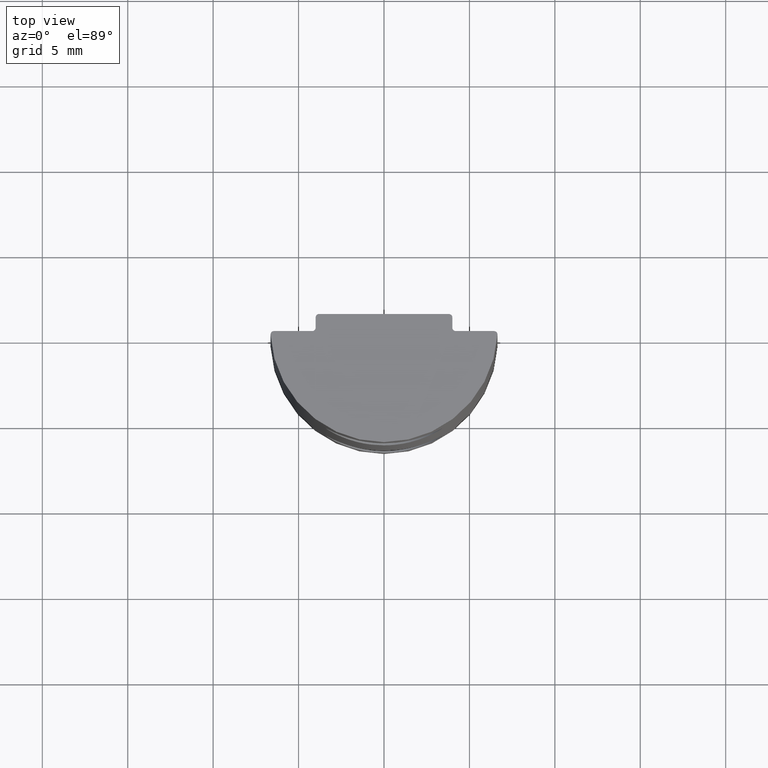
[diagram: clean part render]
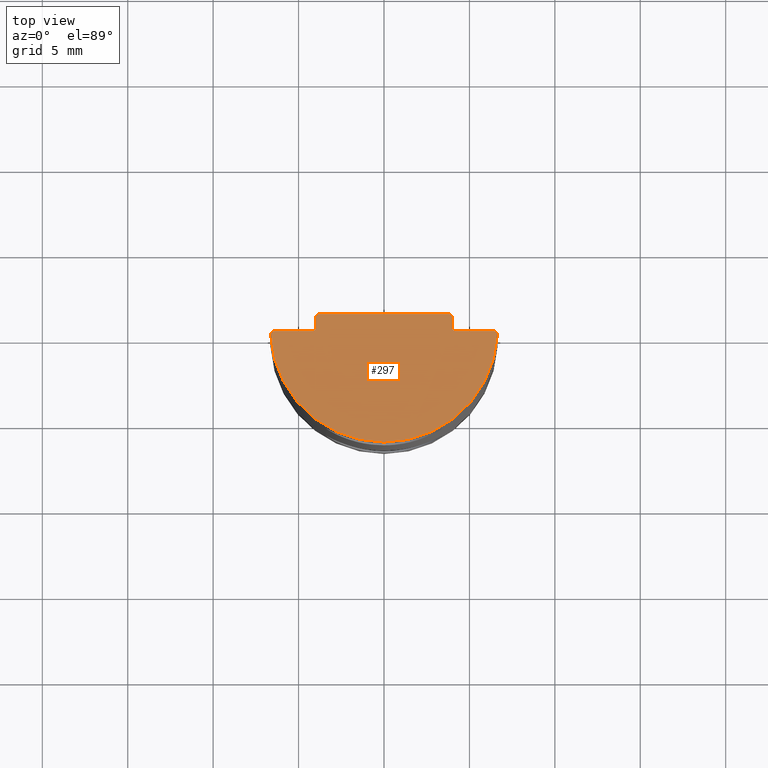
[diagram: same view with one face highlighted and labeled with its STEP entity id]
A machine part, top view. The second image highlights one B-rep face of the part: STEP entity #297.
In plain terms, the highlighted planar face has unit normal (0, 0, 1).
Its self-contained STEP definition (entity closure, byte-faithful):
#23=PLANE('',#321);
#30=LINE('',#525,#52);
#34=LINE('',#534,#56);
#38=LINE('',#543,#60);
#42=LINE('',#552,#64);
#44=LINE('',#556,#66);
#52=VECTOR('',#367,2.24213593341645);
#56=VECTOR('',#373,0.6);
#60=VECTOR('',#379,7.6);
#64=VECTOR('',#385,0.6);
#66=VECTOR('',#389,2.24213593341645);
#77=CIRCLE('',#311,0.2);
#79=CIRCLE('',#314,6.65173076923077);
#81=CIRCLE('',#322,0.2);
#82=CIRCLE('',#323,0.2);
#83=CIRCLE('',#324,0.2);
#84=CIRCLE('',#325,0.2);
#85=CIRCLE('',#326,0.2);
#100=FACE_OUTER_BOUND('',#122,.T.);
#122=EDGE_LOOP('',(#235,#236,#237,#238,#239,#240,#241,#242,#243,#244,#245,
#246));
#135=VERTEX_POINT('',#504);
#136=VERTEX_POINT('',#505);
#139=VERTEX_POINT('',#513);
#143=VERTEX_POINT('',#522);
#144=VERTEX_POINT('',#524);
#147=VERTEX_POINT('',#531);
#148=VERTEX_POINT('',#533);
#151=VERTEX_POINT('',#540);
#152=VERTEX_POINT('',#542);
#155=VERTEX_POINT('',#549);
#156=VERTEX_POINT('',#551);
#157=VERTEX_POINT('',#555);
#163=EDGE_CURVE('',#135,#136,#77,.T.);
#167=EDGE_CURVE('',#136,#139,#79,.T.);
#172=EDGE_CURVE('',#144,#143,#30,.T.);
#176=EDGE_CURVE('',#148,#147,#34,.T.);
#180=EDGE_CURVE('',#152,#151,#38,.T.);
#184=EDGE_CURVE('',#156,#155,#42,.T.);
#186=EDGE_CURVE('',#157,#135,#44,.T.);
#189=EDGE_CURVE('',#151,#156,#81,.T.);
#190=EDGE_CURVE('',#155,#157,#82,.T.);
#191=EDGE_CURVE('',#139,#144,#83,.T.);
#192=EDGE_CURVE('',#143,#148,#84,.T.);
#193=EDGE_CURVE('',#147,#152,#85,.T.);
#235=ORIENTED_EDGE('',*,*,#180,.T.);
#236=ORIENTED_EDGE('',*,*,#189,.T.);
#237=ORIENTED_EDGE('',*,*,#184,.T.);
#238=ORIENTED_EDGE('',*,*,#190,.T.);
#239=ORIENTED_EDGE('',*,*,#186,.T.);
#240=ORIENTED_EDGE('',*,*,#163,.T.);
#241=ORIENTED_EDGE('',*,*,#167,.T.);
#242=ORIENTED_EDGE('',*,*,#191,.T.);
#243=ORIENTED_EDGE('',*,*,#172,.T.);
#244=ORIENTED_EDGE('',*,*,#192,.T.);
#245=ORIENTED_EDGE('',*,*,#176,.T.);
#246=ORIENTED_EDGE('',*,*,#193,.T.);
#297=ADVANCED_FACE('',(#100),#23,.T.);
#311=AXIS2_PLACEMENT_3D('',#506,#350,#351);
#314=AXIS2_PLACEMENT_3D('',#514,#358,#359);
#321=AXIS2_PLACEMENT_3D('',#560,#392,#393);
#322=AXIS2_PLACEMENT_3D('',#561,#394,#395);
#323=AXIS2_PLACEMENT_3D('',#562,#396,#397);
#324=AXIS2_PLACEMENT_3D('',#563,#398,#399);
#325=AXIS2_PLACEMENT_3D('',#564,#400,#401);
#326=AXIS2_PLACEMENT_3D('',#565,#402,#403);
#350=DIRECTION('center_axis',(0.,0.,1.));
#351=DIRECTION('ref_axis',(1.,0.,0.));
#358=DIRECTION('center_axis',(0.,0.,1.));
#359=DIRECTION('ref_axis',(1.,0.,0.));
#367=DIRECTION('',(-1.,0.,0.));
#373=DIRECTION('',(0.,1.,0.));
#379=DIRECTION('',(-1.,0.,0.));
#385=DIRECTION('',(0.,-1.,0.));
#389=DIRECTION('',(-1.,0.,0.));
#392=DIRECTION('center_axis',(0.,0.,1.));
#393=DIRECTION('ref_axis',(1.,0.,0.));
#394=DIRECTION('center_axis',(0.,0.,1.));
#395=DIRECTION('ref_axis',(1.,0.,0.));
#396=DIRECTION('center_axis',(0.,0.,-1.));
#397=DIRECTION('ref_axis',(1.,0.,0.));
#398=DIRECTION('center_axis',(0.,0.,1.));
#399=DIRECTION('ref_axis',(1.,0.,0.));
#400=DIRECTION('center_axis',(0.,0.,-1.));
#401=DIRECTION('ref_axis',(1.,0.,0.));
#402=DIRECTION('center_axis',(0.,0.,1.));
#403=DIRECTION('ref_axis',(1.,0.,0.));
#504=CARTESIAN_POINT('',(-6.44213593341645,0.,40.));
#505=CARTESIAN_POINT('',(-6.6418384989401,-0.210903454648425,40.));
#506=CARTESIAN_POINT('Origin',(-6.44213593341645,-0.2,40.));
#513=CARTESIAN_POINT('',(6.6418384989401,-0.210903454648425,40.));
#514=CARTESIAN_POINT('Origin',(0.,0.151730769230771,40.));
#522=CARTESIAN_POINT('',(4.2,0.,40.));
#524=CARTESIAN_POINT('',(6.44213593341645,0.,40.));
#525=CARTESIAN_POINT('',(4.,0.,40.));
#531=CARTESIAN_POINT('',(4.,0.8,40.));
#533=CARTESIAN_POINT('',(4.,0.2,40.));
#534=CARTESIAN_POINT('',(4.,1.,40.));
#540=CARTESIAN_POINT('',(-3.8,1.,40.));
#542=CARTESIAN_POINT('',(3.8,1.,40.));
#543=CARTESIAN_POINT('',(-4.,1.,40.));
#549=CARTESIAN_POINT('',(-4.,0.2,40.));
#551=CARTESIAN_POINT('',(-4.,0.8,40.));
#552=CARTESIAN_POINT('',(-4.,0.,40.));
#555=CARTESIAN_POINT('',(-4.2,0.,40.));
#556=CARTESIAN_POINT('',(-6.65,0.,40.));
#560=CARTESIAN_POINT('Origin',(0.,0.151730769230771,40.));
#561=CARTESIAN_POINT('Origin',(-3.8,0.8,40.));
#562=CARTESIAN_POINT('Origin',(-4.2,0.2,40.));
#563=CARTESIAN_POINT('Origin',(6.44213593341645,-0.2,40.));
#564=CARTESIAN_POINT('Origin',(4.2,0.2,40.));
#565=CARTESIAN_POINT('Origin',(3.8,0.8,40.));